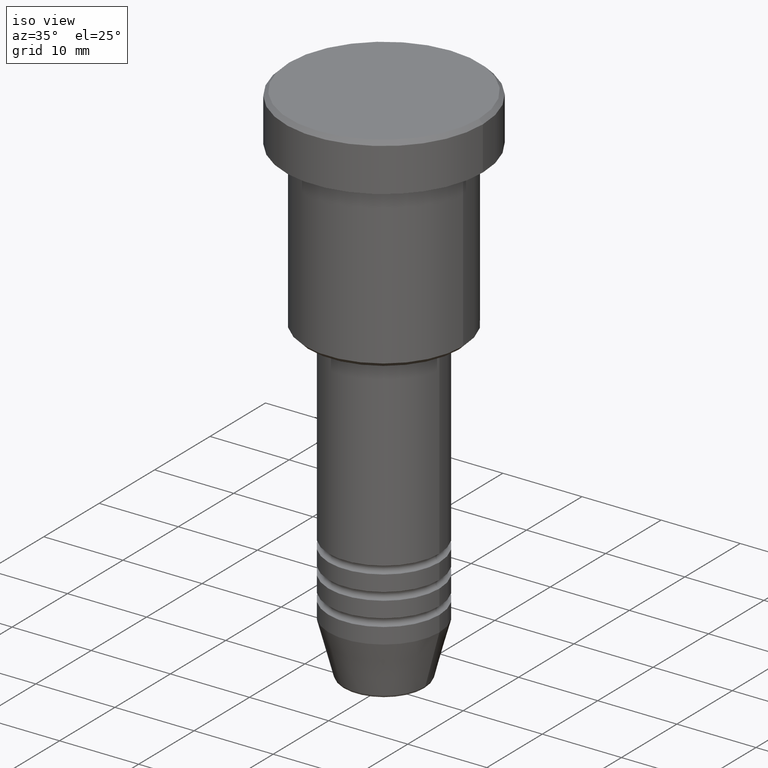
[diagram: clean part render]
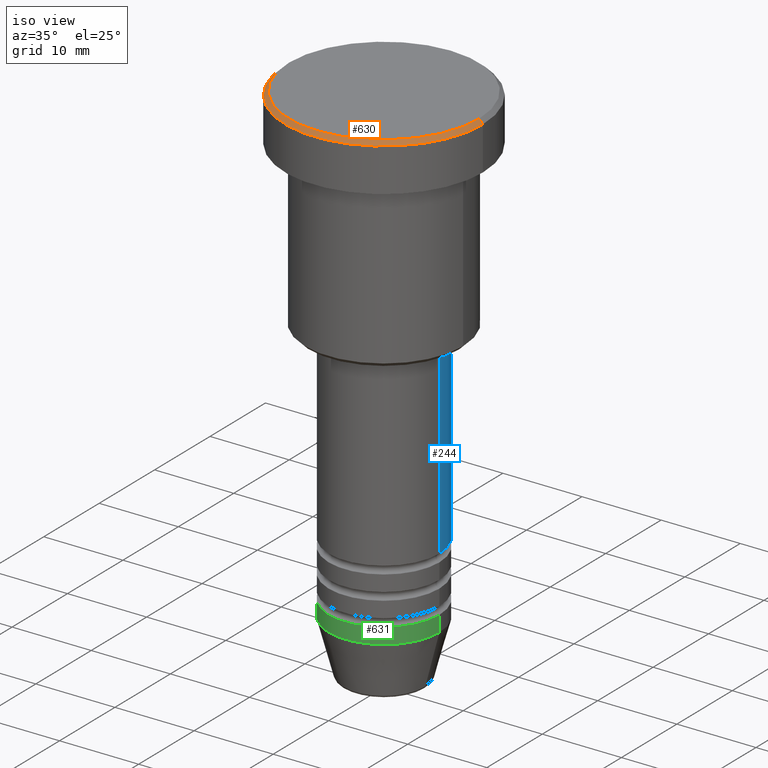
[diagram: same view with three faces highlighted in distinct colors, each labeled with its STEP entity id]
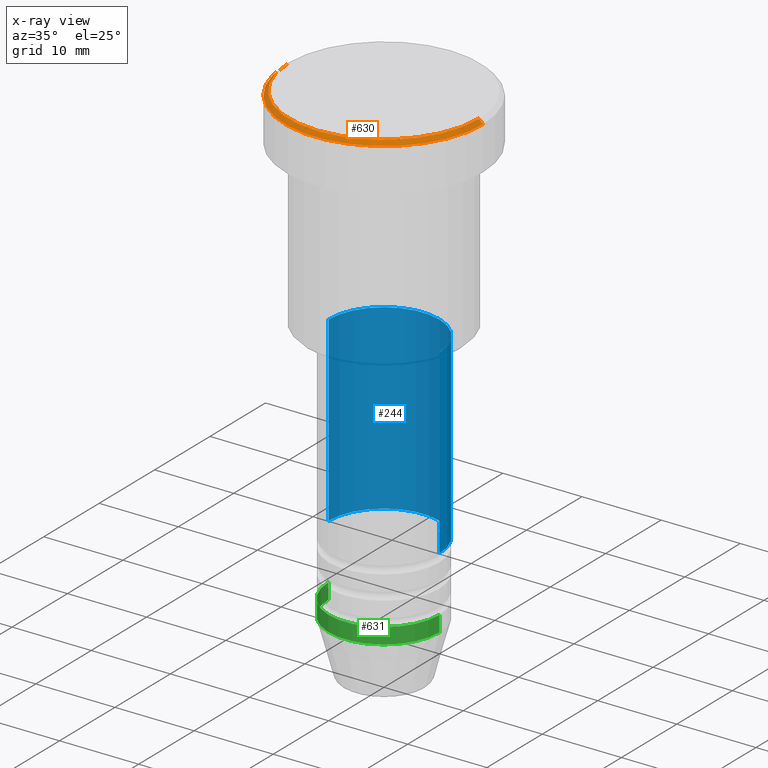
[diagram: x-ray of the same camera — body ghosted, the three highlighted faces saturated]
A machine part, iso view with three faces highlighted in distinct colors.
The next image is the same camera in x-ray (body ghosted, the three faces saturated) — at least one of them is partly hidden behind the body in this view.
Their STEP definitions:

[orange] entity #630 — the highlighted conical surface has half-angle 45 deg.
#19 = ORIENTED_EDGE ( 'NONE', *, *, #1122, .F. ) ;
#64 = AXIS2_PLACEMENT_3D ( 'NONE', #434, #603, #612 ) ;
#89 = VERTEX_POINT ( 'NONE', #867 ) ;
#102 = CIRCLE ( 'NONE', #628, 12.50000000000000000 ) ;
#111 = CARTESIAN_POINT ( 'NONE',  ( 11.99999999999998934, 1.500192328955507143E-15, 0.000000000000000000 ) ) ;
#122 = DIRECTION ( 'NONE',  ( 0.7071067811865512365, 8.659560562354979697E-17, -0.7071067811865439090 ) ) ;
#150 = FACE_OUTER_BOUND ( 'NONE', #622, .T. ) ;
#211 = LINE ( 'NONE', #738, #1015 ) ;
#271 = CARTESIAN_POINT ( 'NONE',  ( 12.50000000000000000, 0.000000000000000000, -0.5000000000000056621 ) ) ;
#275 = CONICAL_SURFACE ( 'NONE', #64, 11.99999999999998934, 0.7853981633974533860 ) ;
#305 = DIRECTION ( 'NONE',  ( 1.000000000000000000, 0.000000000000000000, 0.000000000000000000 ) ) ;
#392 = DIRECTION ( 'NONE',  ( 0.000000000000000000, 0.000000000000000000, -1.000000000000000000 ) ) ;
#406 = VERTEX_POINT ( 'NONE', #1131 ) ;
#434 = CARTESIAN_POINT ( 'NONE',  ( 0.000000000000000000, 0.000000000000000000, 0.000000000000000000 ) ) ;
#524 = LINE ( 'NONE', #1164, #1069 ) ;
#568 = EDGE_CURVE ( 'NONE', #406, #1163, #858, .T. ) ;
#603 = DIRECTION ( 'NONE',  ( 0.000000000000000000, 0.000000000000000000, -1.000000000000000000 ) ) ;
#612 = DIRECTION ( 'NONE',  ( -1.000000000000000000, 0.000000000000000000, 0.000000000000000000 ) ) ;
#622 = EDGE_LOOP ( 'NONE', ( #998, #959, #855, #19 ) ) ;
#628 = AXIS2_PLACEMENT_3D ( 'NONE', #1101, #392, #305 ) ;
#630 = ADVANCED_FACE ( 'NONE', ( #150 ), #275, .T. ) ;
#738 = CARTESIAN_POINT ( 'NONE',  ( 11.99999999999998934, 1.469576158976822567E-15, 0.000000000000000000 ) ) ;
#747 = EDGE_CURVE ( 'NONE', #406, #89, #524, .T. ) ;
#785 = DIRECTION ( 'NONE',  ( -0.000000000000000000, -0.000000000000000000, 1.000000000000000000 ) ) ;
#855 = ORIENTED_EDGE ( 'NONE', *, *, #747, .T. ) ;
#858 = CIRCLE ( 'NONE', #1166, 11.99999999999998934 ) ;
#867 = CARTESIAN_POINT ( 'NONE',  ( -12.50000000000000000, 1.530808498934191521E-15, -0.5000000000000056621 ) ) ;
#929 = VERTEX_POINT ( 'NONE', #271 ) ;
#959 = ORIENTED_EDGE ( 'NONE', *, *, #568, .F. ) ;
#968 = CARTESIAN_POINT ( 'NONE',  ( 0.000000000000000000, 0.000000000000000000, 0.000000000000000000 ) ) ;
#998 = ORIENTED_EDGE ( 'NONE', *, *, #1153, .F. ) ;
#1015 = VECTOR ( 'NONE', #122, 1000.000000000000000 ) ;
#1056 = DIRECTION ( 'NONE',  ( -0.7071067811865512365, 0.000000000000000000, -0.7071067811865439090 ) ) ;
#1069 = VECTOR ( 'NONE', #1056, 1000.000000000000000 ) ;
#1101 = CARTESIAN_POINT ( 'NONE',  ( 0.000000000000000000, 0.000000000000000000, -0.5000000000000056621 ) ) ;
#1122 = EDGE_CURVE ( 'NONE', #929, #89, #102, .T. ) ;
#1131 = CARTESIAN_POINT ( 'NONE',  ( -11.99999999999998934, 0.000000000000000000, 0.000000000000000000 ) ) ;
#1153 = EDGE_CURVE ( 'NONE', #1163, #929, #211, .T. ) ;
#1155 = DIRECTION ( 'NONE',  ( 1.000000000000000000, 0.000000000000000000, 0.000000000000000000 ) ) ;
#1163 = VERTEX_POINT ( 'NONE', #111 ) ;
#1164 = CARTESIAN_POINT ( 'NONE',  ( -11.99999999999998934, 0.000000000000000000, 0.000000000000000000 ) ) ;
#1166 = AXIS2_PLACEMENT_3D ( 'NONE', #968, #785, #1155 ) ;

[blue] entity #244 — the highlighted cylindrical surface (partial cylindrical patch) has radius 7 mm, axis along (-0, -0, 1).
#5 = CARTESIAN_POINT ( 'NONE',  ( 0.000000000000000000, 0.000000000000000000, 0.000000000000000000 ) ) ;
#32 = VERTEX_POINT ( 'NONE', #267 ) ;
#176 = ORIENTED_EDGE ( 'NONE', *, *, #666, .F. ) ;
#194 = CARTESIAN_POINT ( 'NONE',  ( 7.000000000000000000, 0.000000000000000000, -50.99999999999997868 ) ) ;
#195 = DIRECTION ( 'NONE',  ( 1.000000000000000000, 0.000000000000000000, 0.000000000000000000 ) ) ;
#202 = CARTESIAN_POINT ( 'NONE',  ( -7.000000000000000000, 8.572527594031473190E-16, -50.99999999999997868 ) ) ;
#231 = DIRECTION ( 'NONE',  ( -0.000000000000000000, -0.000000000000000000, 1.000000000000000000 ) ) ;
#244 = ADVANCED_FACE ( 'NONE', ( #832 ), #718, .T. ) ;
#267 = CARTESIAN_POINT ( 'NONE',  ( -7.000000000000000000, 8.572527594031473190E-16, -27.99999999999999645 ) ) ;
#302 = CARTESIAN_POINT ( 'NONE',  ( 0.000000000000000000, 0.000000000000000000, -27.99999999999999645 ) ) ;
#304 = EDGE_LOOP ( 'NONE', ( #594, #491, #1096, #176 ) ) ;
#427 = DIRECTION ( 'NONE',  ( -0.000000000000000000, -0.000000000000000000, 1.000000000000000000 ) ) ;
#436 = DIRECTION ( 'NONE',  ( 1.000000000000000000, 0.000000000000000000, 0.000000000000000000 ) ) ;
#480 = AXIS2_PLACEMENT_3D ( 'NONE', #870, #427, #436 ) ;
#491 = ORIENTED_EDGE ( 'NONE', *, *, #791, .T. ) ;
#508 = LINE ( 'NONE', #790, #536 ) ;
#536 = VECTOR ( 'NONE', #231, 1000.000000000000000 ) ;
#549 = EDGE_CURVE ( 'NONE', #919, #1172, #896, .T. ) ;
#594 = ORIENTED_EDGE ( 'NONE', *, *, #549, .T. ) ;
#657 = DIRECTION ( 'NONE',  ( 1.000000000000000000, 0.000000000000000000, 0.000000000000000000 ) ) ;
#666 = EDGE_CURVE ( 'NONE', #919, #833, #1158, .T. ) ;
#718 = CYLINDRICAL_SURFACE ( 'NONE', #1046, 7.000000000000000000 ) ;
#744 = CIRCLE ( 'NONE', #757, 7.000000000000000000 ) ;
#757 = AXIS2_PLACEMENT_3D ( 'NONE', #302, #846, #657 ) ;
#790 = CARTESIAN_POINT ( 'NONE',  ( -7.000000000000000000, 8.572527594031473190E-16, 0.000000000000000000 ) ) ;
#791 = EDGE_CURVE ( 'NONE', #1172, #32, #508, .T. ) ;
#832 = FACE_OUTER_BOUND ( 'NONE', #304, .T. ) ;
#833 = VERTEX_POINT ( 'NONE', #1057 ) ;
#846 = DIRECTION ( 'NONE',  ( -0.000000000000000000, -0.000000000000000000, 1.000000000000000000 ) ) ;
#870 = CARTESIAN_POINT ( 'NONE',  ( 0.000000000000000000, 0.000000000000000000, -50.99999999999997868 ) ) ;
#896 = CIRCLE ( 'NONE', #480, 7.000000000000000000 ) ;
#919 = VERTEX_POINT ( 'NONE', #194 ) ;
#1046 = AXIS2_PLACEMENT_3D ( 'NONE', #5, #1107, #195 ) ;
#1057 = CARTESIAN_POINT ( 'NONE',  ( 7.000000000000000000, 0.000000000000000000, -27.99999999999999645 ) ) ;
#1060 = DIRECTION ( 'NONE',  ( -0.000000000000000000, -0.000000000000000000, 1.000000000000000000 ) ) ;
#1066 = CARTESIAN_POINT ( 'NONE',  ( 7.000000000000000000, 0.000000000000000000, 0.000000000000000000 ) ) ;
#1096 = ORIENTED_EDGE ( 'NONE', *, *, #1132, .F. ) ;
#1107 = DIRECTION ( 'NONE',  ( -0.000000000000000000, -0.000000000000000000, 1.000000000000000000 ) ) ;
#1128 = VECTOR ( 'NONE', #1060, 1000.000000000000000 ) ;
#1132 = EDGE_CURVE ( 'NONE', #833, #32, #744, .T. ) ;
#1158 = LINE ( 'NONE', #1066, #1128 ) ;
#1172 = VERTEX_POINT ( 'NONE', #202 ) ;

[green] entity #631 — the highlighted cylindrical surface (partial cylindrical patch) has radius 7 mm, axis along (-0, -0, 1).
#86 = LINE ( 'NONE', #1019, #776 ) ;
#91 = LINE ( 'NONE', #812, #874 ) ;
#156 = EDGE_CURVE ( 'NONE', #1133, #604, #86, .T. ) ;
#158 = DIRECTION ( 'NONE',  ( 1.000000000000000000, 0.000000000000000000, 0.000000000000000000 ) ) ;
#165 = EDGE_CURVE ( 'NONE', #1085, #544, #91, .T. ) ;
#181 = CIRCLE ( 'NONE', #742, 7.000000000000000000 ) ;
#207 = CARTESIAN_POINT ( 'NONE',  ( 7.000000000000000000, 0.000000000000000000, -60.00000000000000000 ) ) ;
#215 = CARTESIAN_POINT ( 'NONE',  ( -7.000000000000000000, 8.572527594031473190E-16, -60.00000000000000000 ) ) ;
#311 = ORIENTED_EDGE ( 'NONE', *, *, #165, .T. ) ;
#339 = CARTESIAN_POINT ( 'NONE',  ( 0.000000000000000000, 0.000000000000000000, -57.99999999999999289 ) ) ;
#354 = CARTESIAN_POINT ( 'NONE',  ( 0.000000000000000000, 0.000000000000000000, -60.00000000000000000 ) ) ;
#371 = EDGE_LOOP ( 'NONE', ( #477, #924, #311, #1100 ) ) ;
#477 = ORIENTED_EDGE ( 'NONE', *, *, #156, .F. ) ;
#498 = CIRCLE ( 'NONE', #533, 7.000000000000000000 ) ;
#519 = DIRECTION ( 'NONE',  ( -0.000000000000000000, -0.000000000000000000, 1.000000000000000000 ) ) ;
#533 = AXIS2_PLACEMENT_3D ( 'NONE', #339, #697, #976 ) ;
#544 = VERTEX_POINT ( 'NONE', #1070 ) ;
#573 = AXIS2_PLACEMENT_3D ( 'NONE', #1075, #519, #158 ) ;
#575 = EDGE_CURVE ( 'NONE', #604, #544, #498, .T. ) ;
#604 = VERTEX_POINT ( 'NONE', #788 ) ;
#631 = ADVANCED_FACE ( 'NONE', ( #809 ), #971, .T. ) ;
#632 = DIRECTION ( 'NONE',  ( -0.000000000000000000, -0.000000000000000000, 1.000000000000000000 ) ) ;
#674 = EDGE_CURVE ( 'NONE', #1133, #1085, #181, .T. ) ;
#697 = DIRECTION ( 'NONE',  ( -0.000000000000000000, -0.000000000000000000, 1.000000000000000000 ) ) ;
#742 = AXIS2_PLACEMENT_3D ( 'NONE', #354, #1174, #1080 ) ;
#776 = VECTOR ( 'NONE', #923, 1000.000000000000000 ) ;
#788 = CARTESIAN_POINT ( 'NONE',  ( -7.000000000000000000, 8.572527594031473190E-16, -57.99999999999999289 ) ) ;
#809 = FACE_OUTER_BOUND ( 'NONE', #371, .T. ) ;
#812 = CARTESIAN_POINT ( 'NONE',  ( 7.000000000000000000, 0.000000000000000000, 0.000000000000000000 ) ) ;
#874 = VECTOR ( 'NONE', #632, 1000.000000000000000 ) ;
#923 = DIRECTION ( 'NONE',  ( -0.000000000000000000, -0.000000000000000000, 1.000000000000000000 ) ) ;
#924 = ORIENTED_EDGE ( 'NONE', *, *, #674, .T. ) ;
#971 = CYLINDRICAL_SURFACE ( 'NONE', #573, 7.000000000000000000 ) ;
#976 = DIRECTION ( 'NONE',  ( 1.000000000000000000, 0.000000000000000000, 0.000000000000000000 ) ) ;
#1019 = CARTESIAN_POINT ( 'NONE',  ( -7.000000000000000000, 8.572527594031473190E-16, 0.000000000000000000 ) ) ;
#1070 = CARTESIAN_POINT ( 'NONE',  ( 7.000000000000000000, 0.000000000000000000, -57.99999999999999289 ) ) ;
#1075 = CARTESIAN_POINT ( 'NONE',  ( 0.000000000000000000, 0.000000000000000000, 0.000000000000000000 ) ) ;
#1080 = DIRECTION ( 'NONE',  ( 1.000000000000000000, 0.000000000000000000, 0.000000000000000000 ) ) ;
#1085 = VERTEX_POINT ( 'NONE', #207 ) ;
#1100 = ORIENTED_EDGE ( 'NONE', *, *, #575, .F. ) ;
#1133 = VERTEX_POINT ( 'NONE', #215 ) ;
#1174 = DIRECTION ( 'NONE',  ( -0.000000000000000000, -0.000000000000000000, 1.000000000000000000 ) ) ;